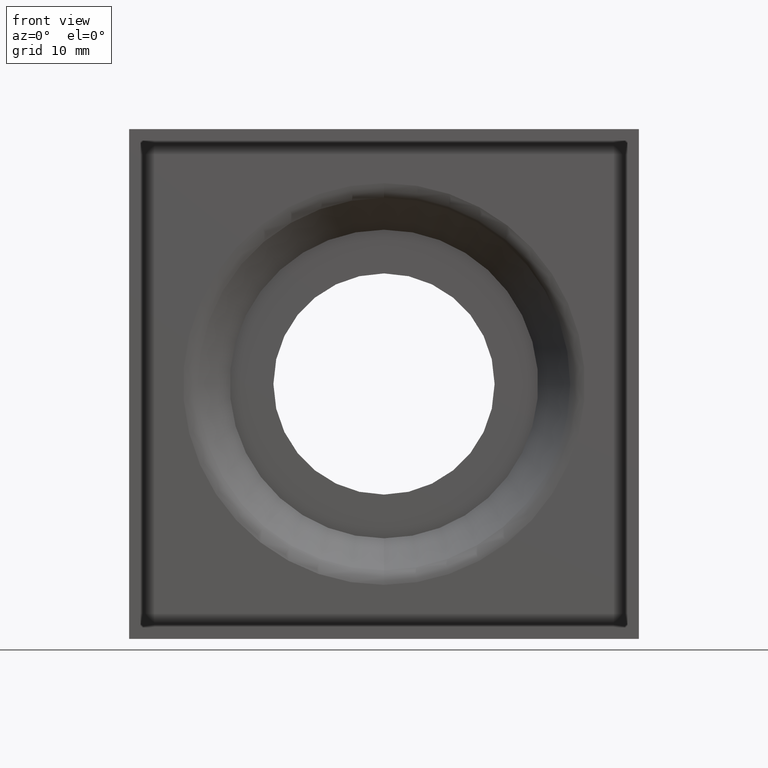
[diagram: clean part render]
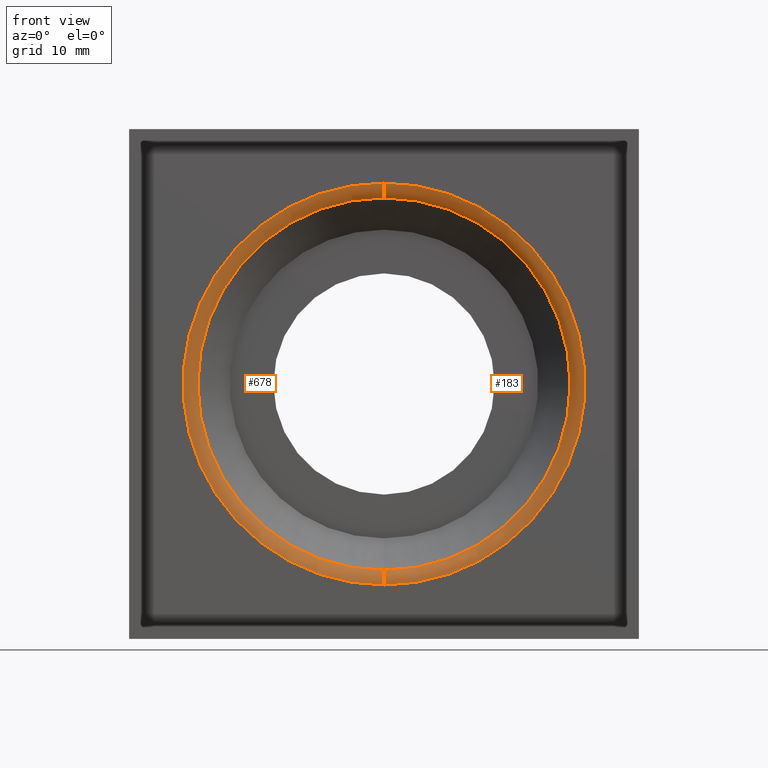
[diagram: same view with one multi-face feature highlighted, each face labeled with its STEP entity id]
A machine part, front view. The highlighted faces form ONE feature: a constant-radius fillet chain: 2 tangent blend faces with common blend radius 2.2 mm. The faces share edges in the B-rep.
Their STEP definitions:
[1] entity #183 (Torus):
#14 = CARTESIAN_POINT ( 'NONE',  ( 0.0000000000000000000, 7.799999999999998900, 0.0000000000000000000 ) ) ;
#29 = CARTESIAN_POINT ( 'NONE',  ( 0.0000000000000000000, 8.444365081389591400, 0.0000000000000000000 ) ) ;
#33 = CIRCLE ( 'NONE', #37, 2.200000000000000600 ) ;
#37 = AXIS2_PLACEMENT_3D ( 'NONE', #602, #600, #545 ) ;
#44 = ORIENTED_EDGE ( 'NONE', *, *, #352, .T. ) ;
#47 = CIRCLE ( 'NONE', #731, 19.60857864376269400 ) ;
#65 = CIRCLE ( 'NONE', #792, 21.16421356237309200 ) ;
#89 = CARTESIAN_POINT ( 'NONE',  ( 0.0000000000000000000, 7.799999999999998900, -21.16421356237309200 ) ) ;
#95 = CARTESIAN_POINT ( 'NONE',  ( 0.0000000000000000000, 9.999999999999998200, 0.0000000000000000000 ) ) ;
#138 = EDGE_CURVE ( 'NONE', #704, #482, #33, .T. ) ;
#143 = VERTEX_POINT ( 'NONE', #725 ) ;
#164 = CARTESIAN_POINT ( 'NONE',  ( 2.591868639563121200E-015, 7.799999999999998900, 21.16421356237309200 ) ) ;
#176 = CIRCLE ( 'NONE', #206, 2.200000000000000600 ) ;
#183 = ADVANCED_FACE ( 'NONE', ( #656 ), #611, .T. ) ;
#206 = AXIS2_PLACEMENT_3D ( 'NONE', #634, #773, #833 ) ;
#224 = EDGE_CURVE ( 'NONE', #704, #472, #65, .T. ) ;
#258 = ORIENTED_EDGE ( 'NONE', *, *, #618, .T. ) ;
#277 = AXIS2_PLACEMENT_3D ( 'NONE', #95, #481, #672 ) ;
#286 = DIRECTION ( 'NONE',  ( 0.0000000000000000000, 1.000000000000000000, 0.0000000000000000000 ) ) ;
#300 = CARTESIAN_POINT ( 'NONE',  ( -2.401358307191313500E-015, 8.444365081389591400, -19.60857864376269400 ) ) ;
#352 = EDGE_CURVE ( 'NONE', #472, #143, #176, .T. ) ;
#421 = ORIENTED_EDGE ( 'NONE', *, *, #138, .F. ) ;
#472 = VERTEX_POINT ( 'NONE', #164 ) ;
#481 = DIRECTION ( 'NONE',  ( 0.0000000000000000000, -1.000000000000000000, 0.0000000000000000000 ) ) ;
#482 = VERTEX_POINT ( 'NONE', #300 ) ;
#542 = EDGE_LOOP ( 'NONE', ( #764, #44, #258, #421 ) ) ;
#545 = DIRECTION ( 'NONE',  ( 0.0000000000000000000, 0.0000000000000000000, 1.000000000000000000 ) ) ;
#557 = DIRECTION ( 'NONE',  ( 0.0000000000000000000, -1.000000000000000000, 0.0000000000000000000 ) ) ;
#574 = DIRECTION ( 'NONE',  ( 0.0000000000000000000, 0.0000000000000000000, -1.000000000000000000 ) ) ;
#600 = DIRECTION ( 'NONE',  ( -1.000000000000000000, -0.0000000000000000000, -0.0000000000000000000 ) ) ;
#602 = CARTESIAN_POINT ( 'NONE',  ( 0.0000000000000000000, 9.999999999999998200, -21.16421356237309200 ) ) ;
#611 = TOROIDAL_SURFACE ( 'NONE', #277, 21.16421356237309200, 2.199999999999999700 ) ;
#618 = EDGE_CURVE ( 'NONE', #143, #482, #47, .T. ) ;
#634 = CARTESIAN_POINT ( 'NONE',  ( 2.591868639563121200E-015, 9.999999999999998200, 21.16421356237309200 ) ) ;
#656 = FACE_OUTER_BOUND ( 'NONE', #542, .T. ) ;
#666 = DIRECTION ( 'NONE',  ( 0.0000000000000000000, 0.0000000000000000000, -1.000000000000000000 ) ) ;
#672 = DIRECTION ( 'NONE',  ( 0.0000000000000000000, 0.0000000000000000000, -1.000000000000000000 ) ) ;
#704 = VERTEX_POINT ( 'NONE', #89 ) ;
#725 = CARTESIAN_POINT ( 'NONE',  ( 0.0000000000000000000, 8.444365081389591400, 19.60857864376269400 ) ) ;
#731 = AXIS2_PLACEMENT_3D ( 'NONE', #29, #286, #666 ) ;
#764 = ORIENTED_EDGE ( 'NONE', *, *, #224, .T. ) ;
#773 = DIRECTION ( 'NONE',  ( 1.000000000000000000, 0.0000000000000000000, -1.224646799147353200E-016 ) ) ;
#792 = AXIS2_PLACEMENT_3D ( 'NONE', #14, #557, #574 ) ;
#833 = DIRECTION ( 'NONE',  ( -1.224646799147353200E-016, 0.0000000000000000000, -1.000000000000000000 ) ) ;
[2] entity #678 (Torus):
#33 = CIRCLE ( 'NONE', #37, 2.200000000000000600 ) ;
#37 = AXIS2_PLACEMENT_3D ( 'NONE', #602, #600, #545 ) ;
#89 = CARTESIAN_POINT ( 'NONE',  ( 0.0000000000000000000, 7.799999999999998900, -21.16421356237309200 ) ) ;
#124 = EDGE_CURVE ( 'NONE', #482, #143, #428, .T. ) ;
#138 = EDGE_CURVE ( 'NONE', #704, #482, #33, .T. ) ;
#143 = VERTEX_POINT ( 'NONE', #725 ) ;
#164 = CARTESIAN_POINT ( 'NONE',  ( 2.591868639563121200E-015, 7.799999999999998900, 21.16421356237309200 ) ) ;
#176 = CIRCLE ( 'NONE', #206, 2.200000000000000600 ) ;
#184 = CARTESIAN_POINT ( 'NONE',  ( 0.0000000000000000000, 8.444365081389591400, 0.0000000000000000000 ) ) ;
#206 = AXIS2_PLACEMENT_3D ( 'NONE', #634, #773, #833 ) ;
#207 = TOROIDAL_SURFACE ( 'NONE', #632, 21.16421356237309200, 2.199999999999999700 ) ;
#270 = EDGE_CURVE ( 'NONE', #472, #704, #504, .T. ) ;
#283 = FACE_OUTER_BOUND ( 'NONE', #508, .T. ) ;
#293 = AXIS2_PLACEMENT_3D ( 'NONE', #635, #765, #378 ) ;
#300 = CARTESIAN_POINT ( 'NONE',  ( -2.401358307191313500E-015, 8.444365081389591400, -19.60857864376269400 ) ) ;
#310 = DIRECTION ( 'NONE',  ( 0.0000000000000000000, 1.000000000000000000, 0.0000000000000000000 ) ) ;
#352 = EDGE_CURVE ( 'NONE', #472, #143, #176, .T. ) ;
#353 = ORIENTED_EDGE ( 'NONE', *, *, #138, .T. ) ;
#378 = DIRECTION ( 'NONE',  ( 0.0000000000000000000, 0.0000000000000000000, -1.000000000000000000 ) ) ;
#411 = DIRECTION ( 'NONE',  ( 0.0000000000000000000, 0.0000000000000000000, -1.000000000000000000 ) ) ;
#428 = CIRCLE ( 'NONE', #834, 19.60857864376269400 ) ;
#435 = ORIENTED_EDGE ( 'NONE', *, *, #124, .T. ) ;
#472 = VERTEX_POINT ( 'NONE', #164 ) ;
#482 = VERTEX_POINT ( 'NONE', #300 ) ;
#504 = CIRCLE ( 'NONE', #293, 21.16421356237309200 ) ;
#508 = EDGE_LOOP ( 'NONE', ( #569, #637, #353, #435 ) ) ;
#545 = DIRECTION ( 'NONE',  ( 0.0000000000000000000, 0.0000000000000000000, 1.000000000000000000 ) ) ;
#569 = ORIENTED_EDGE ( 'NONE', *, *, #352, .F. ) ;
#600 = DIRECTION ( 'NONE',  ( -1.000000000000000000, -0.0000000000000000000, -0.0000000000000000000 ) ) ;
#602 = CARTESIAN_POINT ( 'NONE',  ( 0.0000000000000000000, 9.999999999999998200, -21.16421356237309200 ) ) ;
#632 = AXIS2_PLACEMENT_3D ( 'NONE', #661, #664, #411 ) ;
#634 = CARTESIAN_POINT ( 'NONE',  ( 2.591868639563121200E-015, 9.999999999999998200, 21.16421356237309200 ) ) ;
#635 = CARTESIAN_POINT ( 'NONE',  ( 0.0000000000000000000, 7.799999999999998900, 0.0000000000000000000 ) ) ;
#637 = ORIENTED_EDGE ( 'NONE', *, *, #270, .T. ) ;
#661 = CARTESIAN_POINT ( 'NONE',  ( 0.0000000000000000000, 9.999999999999998200, 0.0000000000000000000 ) ) ;
#664 = DIRECTION ( 'NONE',  ( 0.0000000000000000000, -1.000000000000000000, 0.0000000000000000000 ) ) ;
#678 = ADVANCED_FACE ( 'NONE', ( #283 ), #207, .T. ) ;
#704 = VERTEX_POINT ( 'NONE', #89 ) ;
#725 = CARTESIAN_POINT ( 'NONE',  ( 0.0000000000000000000, 8.444365081389591400, 19.60857864376269400 ) ) ;
#756 = DIRECTION ( 'NONE',  ( 0.0000000000000000000, 0.0000000000000000000, -1.000000000000000000 ) ) ;
#765 = DIRECTION ( 'NONE',  ( 0.0000000000000000000, -1.000000000000000000, 0.0000000000000000000 ) ) ;
#773 = DIRECTION ( 'NONE',  ( 1.000000000000000000, 0.0000000000000000000, -1.224646799147353200E-016 ) ) ;
#833 = DIRECTION ( 'NONE',  ( -1.224646799147353200E-016, 0.0000000000000000000, -1.000000000000000000 ) ) ;
#834 = AXIS2_PLACEMENT_3D ( 'NONE', #184, #310, #756 ) ;